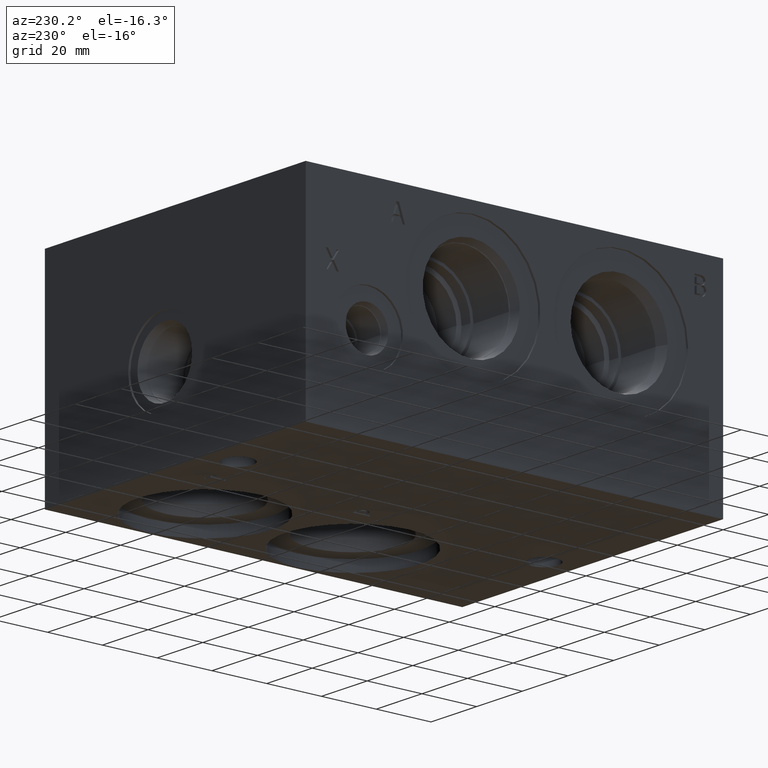
[diagram: clean part render]
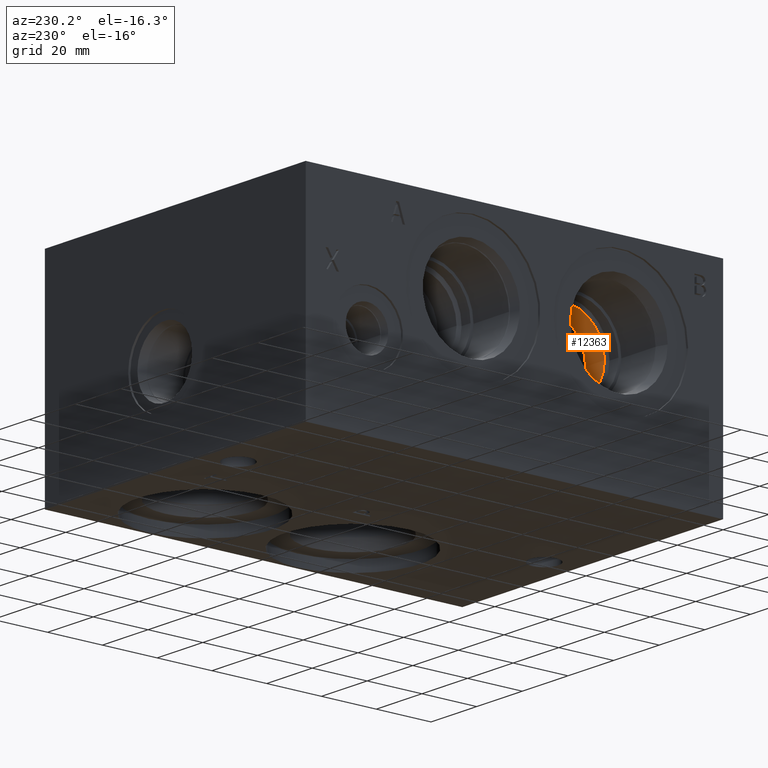
[diagram: same view with one face highlighted and labeled with its STEP entity id]
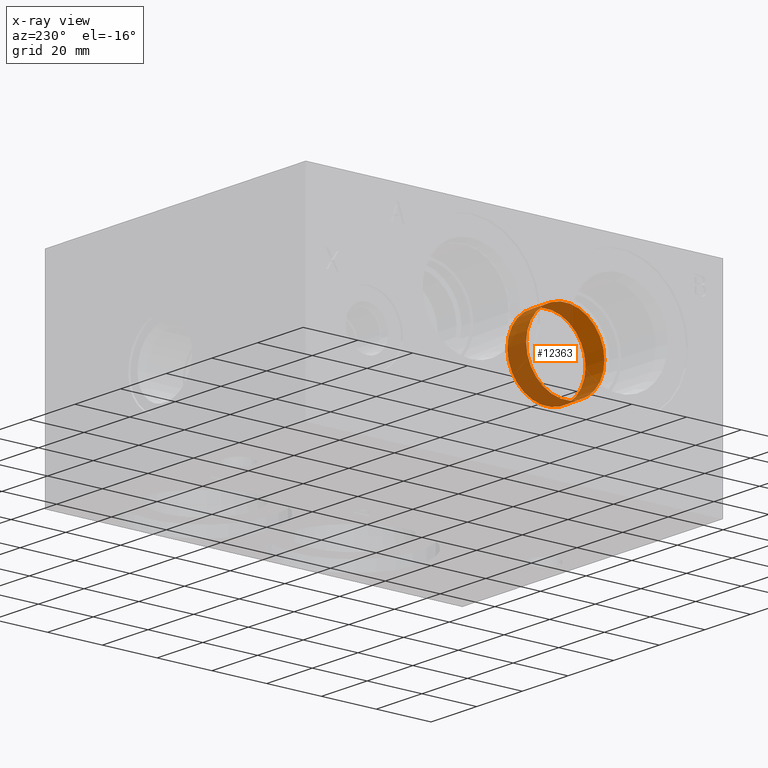
[diagram: x-ray of the same camera — body ghosted, the highlighted face saturated]
A machine part, auxiliary view. The second image highlights one B-rep face of the part: STEP entity #12363.
The next image is the same camera in x-ray: the body ghosted, the highlighted face saturated — about 67% of this face is hidden behind the body in this view.
In plain terms, the highlighted cylindrical surface (bore or boss wall) has radius 14.2875 mm, axis along (-1, 0, 0).
Its self-contained STEP definition (entity closure, byte-faithful):
#43=CYLINDRICAL_SURFACE('',#12966,14.2875);
#254=CIRCLE('',#12963,14.2875);
#256=CIRCLE('',#12965,14.2875);
#257=CIRCLE('',#12967,14.2875);
#1406=FACE_OUTER_BOUND('',#2110,.T.);
#2110=EDGE_LOOP('',(#10679,#10680,#10681,#10682,#10683));
#3282=LINE('',#21191,#4399);
#4399=VECTOR('',#15250,14.2875);
#5818=VERTEX_POINT('',#21181);
#5819=VERTEX_POINT('',#21182);
#5821=VERTEX_POINT('',#21189);
#7489=EDGE_CURVE('',#5818,#5819,#254,.T.);
#7492=EDGE_CURVE('',#5819,#5818,#256,.T.);
#7493=EDGE_CURVE('',#5821,#5821,#257,.T.);
#7494=EDGE_CURVE('',#5821,#5819,#3282,.T.);
#10679=ORIENTED_EDGE('',*,*,#7493,.F.);
#10680=ORIENTED_EDGE('',*,*,#7494,.T.);
#10681=ORIENTED_EDGE('',*,*,#7489,.F.);
#10682=ORIENTED_EDGE('',*,*,#7492,.F.);
#10683=ORIENTED_EDGE('',*,*,#7494,.F.);
#12363=ADVANCED_FACE('',(#1406),#43,.F.);
#12963=AXIS2_PLACEMENT_3D('',#21183,#15239,#15240);
#12965=AXIS2_PLACEMENT_3D('',#21187,#15244,#15245);
#12966=AXIS2_PLACEMENT_3D('',#21188,#15246,#15247);
#12967=AXIS2_PLACEMENT_3D('',#21190,#15248,#15249);
#15239=DIRECTION('center_axis',(-1.,0.,0.));
#15240=DIRECTION('ref_axis',(0.,1.,0.));
#15244=DIRECTION('center_axis',(-1.,0.,0.));
#15245=DIRECTION('ref_axis',(0.,1.,0.));
#15246=DIRECTION('center_axis',(-1.,0.,0.));
#15247=DIRECTION('ref_axis',(0.,1.,0.));
#15248=DIRECTION('center_axis',(1.,0.,0.));
#15249=DIRECTION('ref_axis',(0.,1.,0.));
#15250=DIRECTION('',(1.,0.,0.));
#21181=CARTESIAN_POINT('',(32.64709,51.6001,47.625));
#21182=CARTESIAN_POINT('',(32.64709,23.0251,47.625));
#21183=CARTESIAN_POINT('Origin',(32.64709,37.3126,47.625));
#21187=CARTESIAN_POINT('Origin',(32.64709,37.3126,47.625));
#21188=CARTESIAN_POINT('Origin',(16.323545,37.3126,47.625));
#21189=CARTESIAN_POINT('',(24.3981968561624,23.0251,47.625));
#21190=CARTESIAN_POINT('Origin',(24.3981968561624,37.3126,47.625));
#21191=CARTESIAN_POINT('',(16.323545,23.0251,47.625));